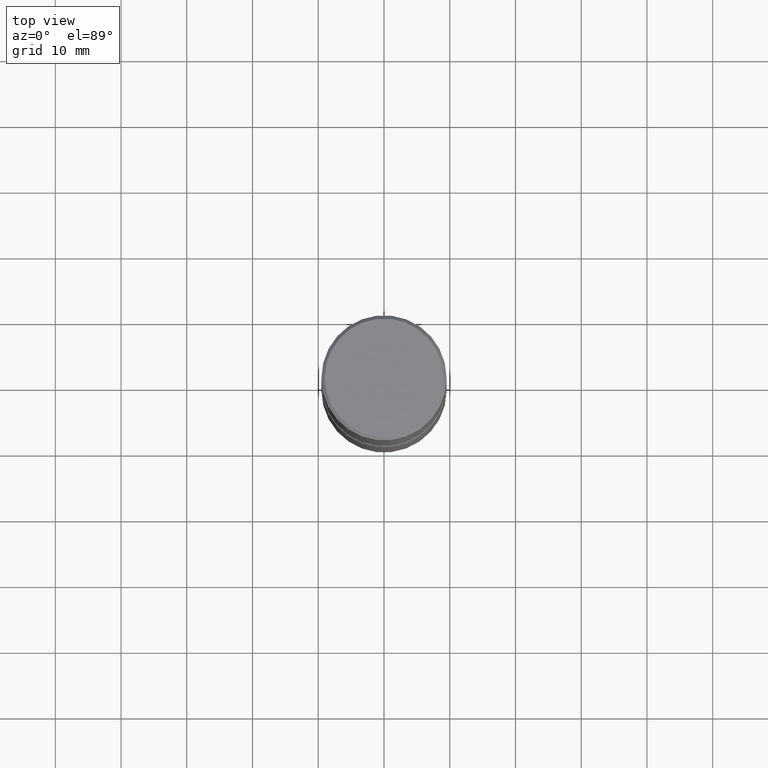
[diagram: clean part render]
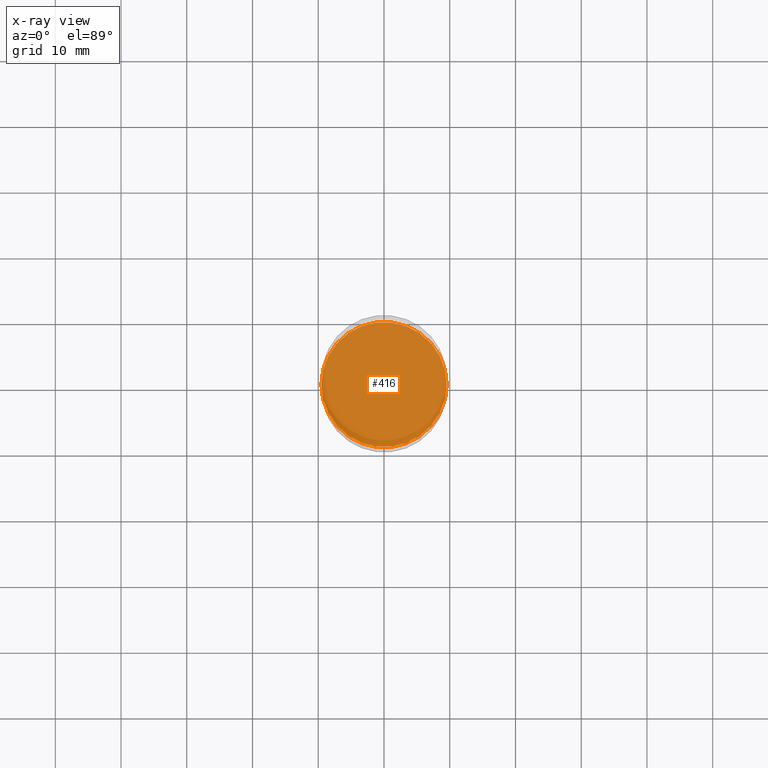
[diagram: x-ray — body ghosted, one internal face saturated and labeled with its STEP entity id]
A machine part, top view, then the same camera in x-ray: the body is ghosted and one INTERNAL B-rep face — a face not visible from any outside direction — is saturated and labeled: STEP entity #416.
In plain terms, the highlighted planar face has unit normal (0, -0, -1).
Its self-contained STEP definition (entity closure, byte-faithful):
#37 = DIRECTION ( 'NONE',  ( -2.445468806185136597E-29, 3.491481338843145583E-15, 1.000000000000000000 ) ) ;
#43 = VERTEX_POINT ( 'NONE', #73 ) ;
#73 = CARTESIAN_POINT ( 'NONE',  ( -0.3750000000000002776, -8.743880015569600564E-15, -2.375000000000000000 ) ) ;
#98 = PLANE ( 'NONE',  #425 ) ;
#100 = CARTESIAN_POINT ( 'NONE',  ( 5.807988414689700538E-29, -8.292268179752471696E-15, -2.375000000000000000 ) ) ;
#119 = ORIENTED_EDGE ( 'NONE', *, *, #249, .T. ) ;
#138 = CIRCLE ( 'NONE', #526, 0.3750000000000002776 ) ;
#167 = DIRECTION ( 'NONE',  ( 1.000000000000000000, -6.982962677686265922E-15, 0.000000000000000000 ) ) ;
#172 = VERTEX_POINT ( 'NONE', #276 ) ;
#182 = CIRCLE ( 'NONE', #504, 0.3750000000000002776 ) ;
#249 = EDGE_CURVE ( 'NONE', #172, #43, #138, .T. ) ;
#266 = EDGE_CURVE ( 'NONE', #43, #172, #182, .T. ) ;
#276 = CARTESIAN_POINT ( 'NONE',  ( 0.3750000000000002776, -1.091087918388482329E-14, -2.375000000000000000 ) ) ;
#307 = EDGE_LOOP ( 'NONE', ( #119, #528 ) ) ;
#344 = CARTESIAN_POINT ( 'NONE',  ( 5.807988414689700538E-29, -8.292268179752471696E-15, -2.375000000000000000 ) ) ;
#415 = DIRECTION ( 'NONE',  ( 1.000000000000000000, -6.982962677686265922E-15, 0.000000000000000000 ) ) ;
#416 = ADVANCED_FACE ( 'NONE', ( #488 ), #98, .F. ) ;
#425 = AXIS2_PLACEMENT_3D ( 'NONE', #100, #480, #435 ) ;
#435 = DIRECTION ( 'NONE',  ( -1.000000000000000000, 6.982962677686265922E-15, -4.876176775795935793E-29 ) ) ;
#457 = DIRECTION ( 'NONE',  ( -2.445468806185136597E-29, 3.491481338843145583E-15, 1.000000000000000000 ) ) ;
#480 = DIRECTION ( 'NONE',  ( 2.438088387897960049E-29, -3.491481338843145188E-15, -1.000000000000000000 ) ) ;
#488 = FACE_OUTER_BOUND ( 'NONE', #307, .T. ) ;
#497 = CARTESIAN_POINT ( 'NONE',  ( 5.807988414689700538E-29, -8.292268179752471696E-15, -2.375000000000000000 ) ) ;
#504 = AXIS2_PLACEMENT_3D ( 'NONE', #344, #37, #167 ) ;
#526 = AXIS2_PLACEMENT_3D ( 'NONE', #497, #457, #415 ) ;
#528 = ORIENTED_EDGE ( 'NONE', *, *, #266, .T. ) ;